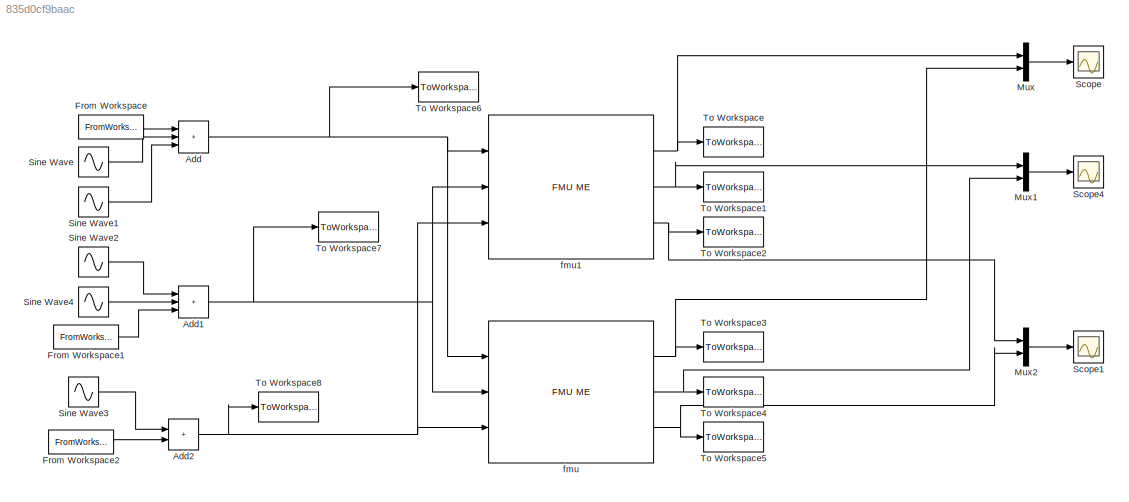
MODEL slx_835d0cf9baac
KIND model
CONFIG AbsTol = auto
CONFIG EnableMultiTasking = on
CONFIG FixedStep = 0.01
CONFIG MaxStep = auto
CONFIG MinStep = auto
CONFIG RelTol = 0.001
CONFIG SampleTimeConstraint = Unconstrained
CONFIG Solver = FixedStepAuto
CONFIG SolverName = FixedStepAuto
CONFIG StartTime = 0
CONFIG StopTime = 10
BLOCK [Sum] Add
  IconShape = rectangular
  Inputs = +++
  Ports = [3, 1]
BLOCK [Sum] Add1
  IconShape = rectangular
  Inputs = +++
  Ports = [3, 1]
BLOCK [Sum] Add2
  IconShape = rectangular
  Ports = [2, 1]
BLOCK [FromWorkspace] From Workspace
  VariableName = [t,P]
BLOCK [FromWorkspace] From Workspace1
  VariableName = [t,Q]
BLOCK [FromWorkspace] From Workspace2
  VariableName = [t,Efd]
BLOCK [Mux] Mux
  DisplayOption = bar
  Inputs = 2
  Ports = [2, 1]
BLOCK [Mux] Mux1
  DisplayOption = bar
  Inputs = 2
  Ports = [2, 1]
BLOCK [Mux] Mux2
  DisplayOption = bar
  Inputs = 2
  Ports = [2, 1]
BLOCK [Scope] Scope
  Floating = off
  NumInputPorts = 1
  Ports = [1]
  ScopeSpecificationString = Simulink.scopes.TimeScopeBlockCfg('CurrentConfiguration', extmgr.ConfigurationSet(extmgr.Configuration('Core','General UI',true,'FigureColor',[1 1 1]),extmgr.Configuration('Core','Source UI',true),extmgr.Configuration('Sources','WiredSimulink',true),extmgr.Configuration('Visuals','Time Domain',true,'SerializedDisplays',{struct('MinYLimReal','0.7928','MaxYLimReal','1.17981','YLabelReal','','MinYLim...<+1420ch>
BLOCK [Scope] Scope1
  Floating = off
  NumInputPorts = 1
  Ports = [1]
  ScopeSpecificationString = Simulink.scopes.TimeScopeBlockCfg('CurrentConfiguration', extmgr.ConfigurationSet(extmgr.Configuration('Core','General UI',true,'FigureColor',[1 1 1]),extmgr.Configuration('Core','Source UI',true),extmgr.Configuration('Sources','WiredSimulink',true,'DataLoggingVariableName','ScopeData1'),extmgr.Configuration('Visuals','Time Domain',true,'SerializedDisplays',{struct('MinYLimReal','-0.00168','MaxYLi...<+1438ch>
BLOCK [Scope] Scope4
  Floating = off
  NumInputPorts = 1
  Ports = [1]
  ScopeSpecificationString = Simulink.scopes.TimeScopeBlockCfg('CurrentConfiguration', extmgr.ConfigurationSet(extmgr.Configuration('Core','General UI',true,'FigureColor',[1 1 1]),extmgr.Configuration('Core','Source UI',true),extmgr.Configuration('Sources','WiredSimulink',true,'DataLoggingVariableName','ScopeData4'),extmgr.Configuration('Visuals','Time Domain',true,'SerializedDisplays',{struct('MinYLimReal','0.92098','MaxYLim...<+1463ch>
BLOCK [Sin] Sine Wave
  Amplitude = 0.225
  Frequency = 1550
  Ports = [0, 1]
  SampleTime = 0
BLOCK [Sin] Sine Wave1
  Amplitude = 0
  Frequency = 110
  Ports = [0, 1]
  SampleTime = 0
BLOCK [Sin] Sine Wave2
  Amplitude = 0
  Frequency = 37.4
  Ports = [0, 1]
  SampleTime = 0
BLOCK [Sin] Sine Wave3
  Amplitude = 0
  Frequency = 1550
  Ports = [0, 1]
  SampleTime = 0
BLOCK [Sin] Sine Wave4
  Amplitude = 0.45
  Frequency = 1300
  Ports = [0, 1]
  SampleTime = 0
BLOCK [ToWorkspace] To Workspace
  MaxDataPoints = inf
  Ports = [1]
  SampleTime = 0.005
  SaveFormat = Structure With Time
  VariableName = Vt
BLOCK [ToWorkspace] To Workspace1
  MaxDataPoints = inf
  Ports = [1]
  SampleTime = 0.005
  SaveFormat = Structure With Time
  VariableName = XadIfd
BLOCK [ToWorkspace] To Workspace2
  MaxDataPoints = inf
  Ports = [1]
  SampleTime = 0.005
  SaveFormat = Structure With Time
  VariableName = speed
BLOCK [ToWorkspace] To Workspace3
  MaxDataPoints = inf
  Ports = [1]
  SampleTime = 0.005
  SaveFormat = Structure With Time
  VariableName = Vt_degraded
BLOCK [ToWorkspace] To Workspace4
  MaxDataPoints = inf
  Ports = [1]
  SampleTime = 0.005
  SaveFormat = Structure With Time
  VariableName = XadIfd_degraded
BLOCK [ToWorkspace] To Workspace5
  MaxDataPoints = inf
  Ports = [1]
  SampleTime = 0.005
  SaveFormat = Structure With Time
  VariableName = speed_degraded
BLOCK [ToWorkspace] To Workspace6
  MaxDataPoints = inf
  Ports = [1]
  SampleTime = 0.005
  SaveFormat = Structure With Time
  VariableName = Psin
BLOCK [ToWorkspace] To Workspace7
  MaxDataPoints = inf
  Ports = [1]
  SampleTime = 0.005
  SaveFormat = Structure With Time
  VariableName = Qsin
BLOCK [ToWorkspace] To Workspace8
  MaxDataPoints = inf
  Ports = [1]
  SampleTime = 0.005
  SaveFormat = Structure With Time
  VariableName = Efdsin
BLOCK [Reference] fmu  REF=fmu_me_lib/FMU ME
  Description = Simulates an FMU for Model Exchange 1.0 or Model Exchange 2.0.
  Ports = [3, 3]
  SourceBlock = fmu_me_lib/FMU ME
  UserDataPersistent = on
BLOCK [Reference] fmu1  REF=fmu_me_lib/FMU ME
  Description = Simulates an FMU for Model Exchange 1.0 or Model Exchange 2.0.
  Ports = [3, 3]
  SourceBlock = fmu_me_lib/FMU ME
  UserDataPersistent = on
NET Add1:1 -> To Workspace7:1, fmu1:2, fmu:2
NET Add2:1 -> To Workspace8:1, fmu1:3, fmu:3
NET Add:1 -> To Workspace6:1, fmu1:1, fmu:1
LINE From Workspace1:1 -> Add1:3
LINE From Workspace2:1 -> Add2:2
LINE From Workspace:1 -> Add:1
LINE Mux1:1 -> Scope4:1
LINE Mux2:1 -> Scope1:1
LINE Mux:1 -> Scope:1
LINE Sine Wave1:1 -> Add:3
LINE Sine Wave2:1 -> Add1:1
LINE Sine Wave3:1 -> Add2:1
LINE Sine Wave4:1 -> Add1:2
LINE Sine Wave:1 -> Add:2
NET fmu1:1 -> Mux:1, To Workspace:1
NET fmu1:2 -> Mux1:1, To Workspace1:1
NET fmu1:3 -> Mux2:1, To Workspace2:1
NET fmu:1 -> Mux:2, To Workspace3:1
NET fmu:2 -> Mux1:2, To Workspace4:1
NET fmu:3 -> Mux2:2, To Workspace5:1
note: NET lines group one-source signal fan-out (src -> all destinations, sorted); 1:1 wires keep LINE
